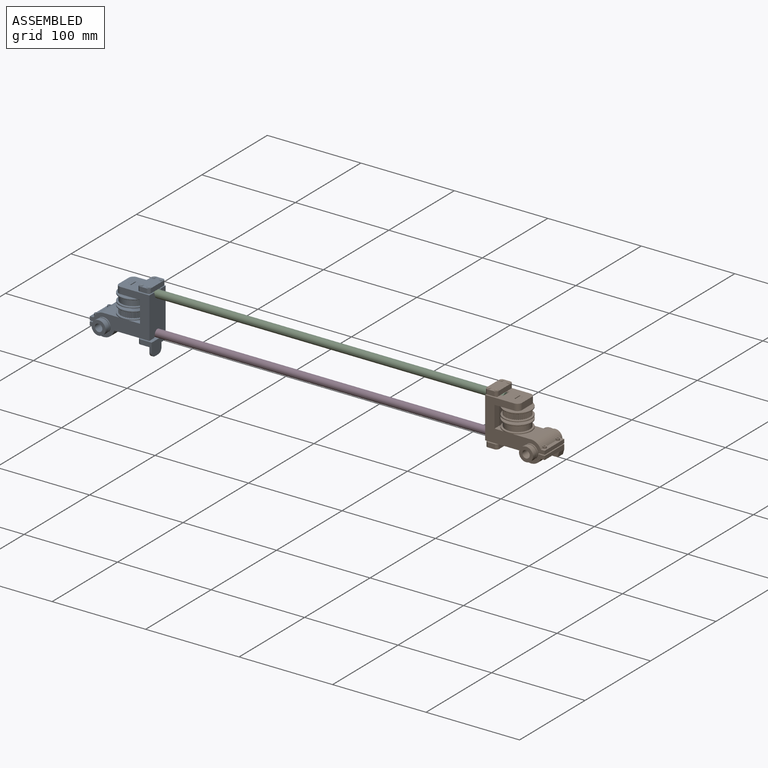
[diagram: assembled view]
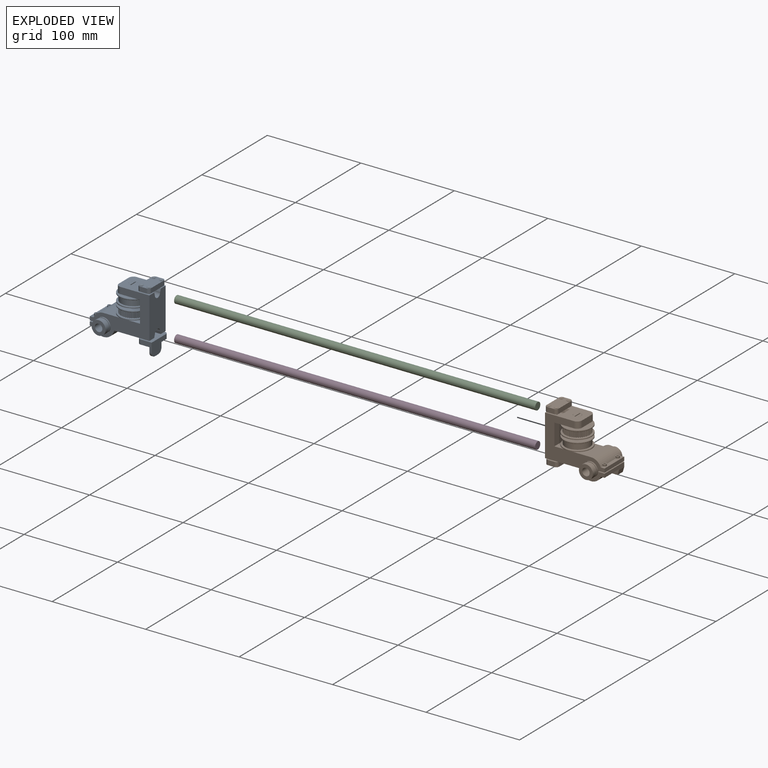
[diagram: exploded view]
GUIDED TOUR — MATED ASSEMBLY WITH SUBASSEMBLIES (Onshape document 680bb077483fe543d86ea1bb, AutoMate assembly 680bb077483fe543d86ea1bb_588a578d4577f737557ca1e0_59685756914b2273c871ae0a_default)

This assembly has 22 component occurrences arranged in 4 top-level units: 2 individual components plus 2 subassemblies (S0, S1). The tour has two levels: first the top level, where each subassembly is treated as one rigid unit; then each subassembly is toured internally in its own section (nesting deeper than one subassembly level is flattened into its subassembly's section).

Components are labeled P0..P21 across the whole record; subassembly units are labeled S0..S1. A mate is a constraint between two units; its type names the relative motion it leaves free:
  FASTENED — locks the two components together rigidly (no relative motion),
  SLIDER — leaves translation along the listed axis free.
Axis/direction vectors are unit vectors and 'through' points are millimeter coordinates, both in the assembly's world frame.

TOP-LEVEL MATES (between units; each subassembly's internal mates are listed in its own section)
  1. FASTENED "Fastened 2": P21 <-> S0, direction (-1.000, 0.000, 0.000) through (-25.36, 62.85, 22.77) mm
  2. SLIDER "Slider 1": S1 <-> P12, axis (-1.000, 0.000, 0.000) through (361.82, 62.85, 60.77) mm
  3. SLIDER "Slider 3": P12 <-> S0, axis (-1.000, 0.000, 0.000) through (-25.36, 62.85, 60.77) mm

TOP-LEVEL ASSEMBLY ORDER
  1. S0 — the base component [order heuristic]
  2. P12 [order heuristic]
  3. P21 [order heuristic]
  4. S1 [order heuristic]
Order-tag legend:
  [order heuristic] — this assembly is geometrically interlocked (no collision-free removal order exists), so components are listed in mate-graph order; insertion feasibility is not verified.

Of the 22 component occurrences, 4 carry the full construction recipe — the FeatureScript program that regenerates the part's solid from scratch; the rest are supplied as boundary geometry only. Each toured unit is shown spotlighted twice — assembled, then exploded with a leader line back to its socket (green = recipe-attached component, orange = geometry-only, blue = subassembly unit; the rest desaturated gray).
NOTE — this tour is split across 2 documents so each fits a 32k-token context. This is document 1: the component sections continue in the remaining 1 document, each repeating the header above.
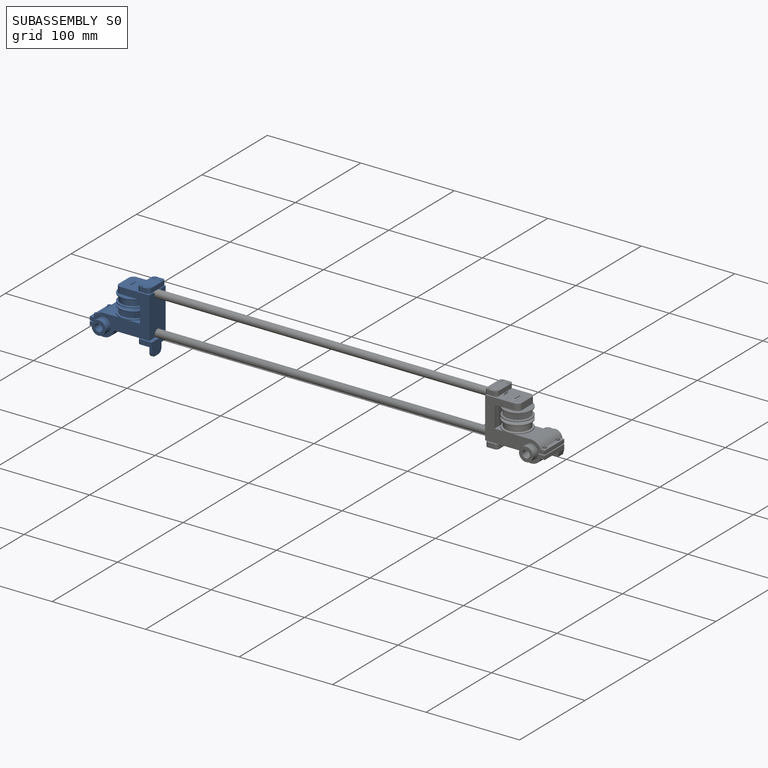
[diagram: subassembly S0 — assembled]
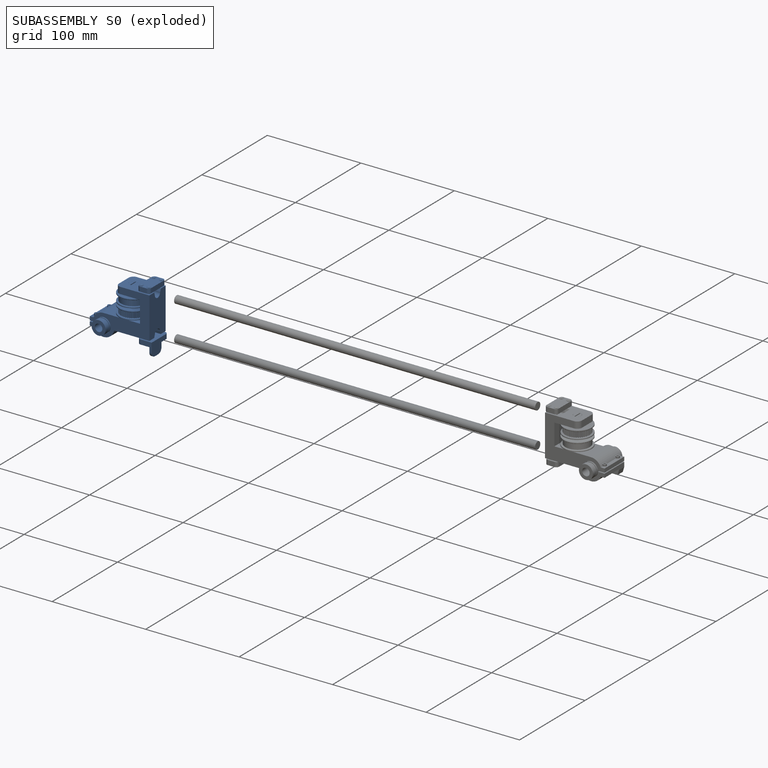
[diagram: subassembly S0 — exploded]
SUBASSEMBLY S0 — 10 components (P0, P6, P8, P9, P10, P14, P15, P16, P18, P19), of which 2 recipe-attached; toured below.
Held by: FASTENED mate "Fastened 2" to P21; SLIDER mate "Slider 3" to P12.
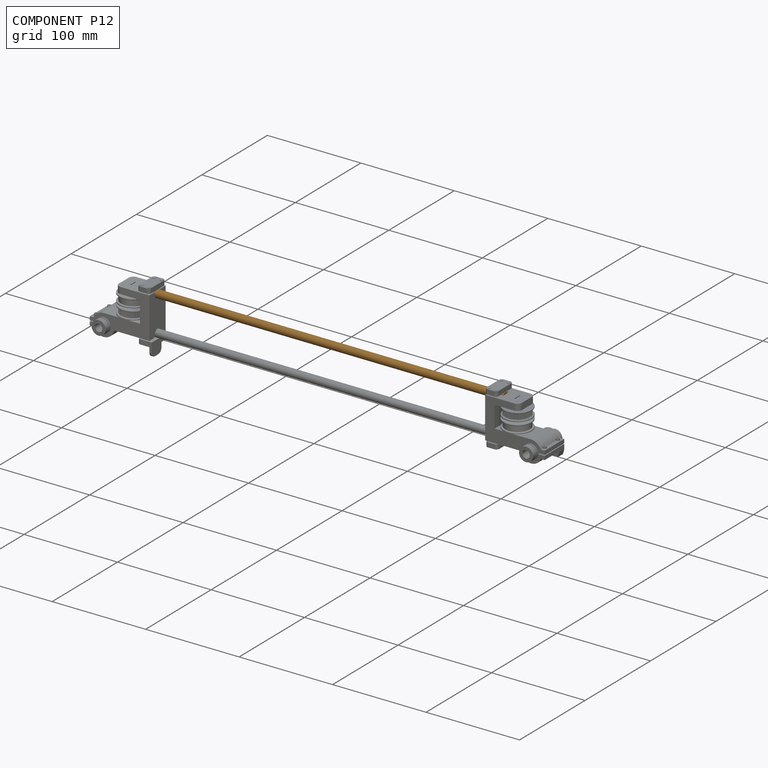
[diagram: component P12 — assembled]
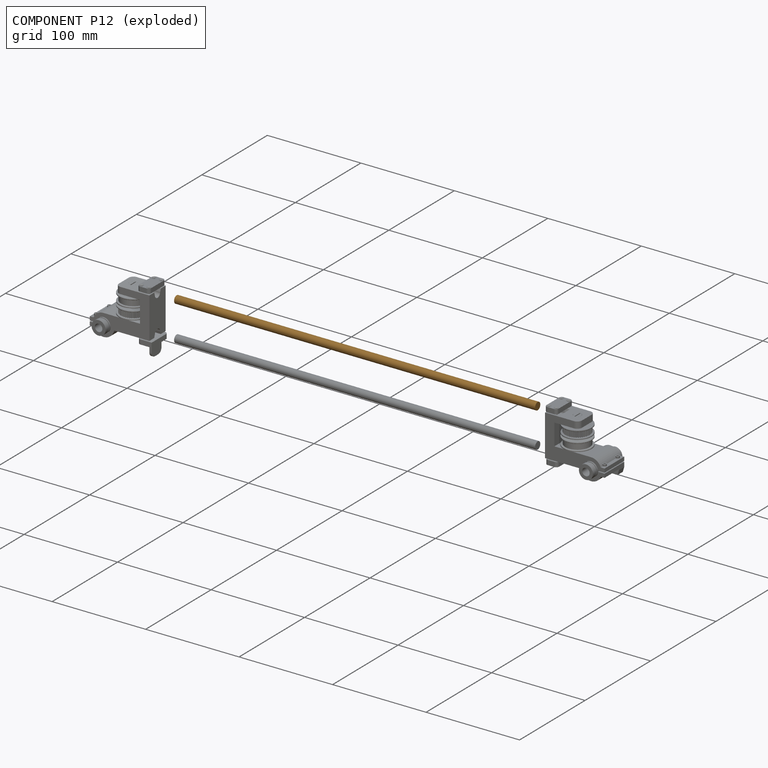
[diagram: component P12 — exploded]
COMPONENT P12 — geometry summary (no construction recipe available for this part):
  bounding box: 386.2 x 8.0 x 8.0 mm
  B-rep topology: 1 solid, 3 faces, 6 edges
  volume: 19411 mm^3 (79% of its bounding box)
  symmetry: revolution-symmetric about the x axis through its bounding-box center; 2-fold rotationally symmetric about the y axis; 2-fold rotationally symmetric about the z axis; mirror-symmetric across its x mid-plane, y mid-plane, z mid-plane
Held by: SLIDER mate "Slider 1" to P1; SLIDER mate "Slider 3" to P0.
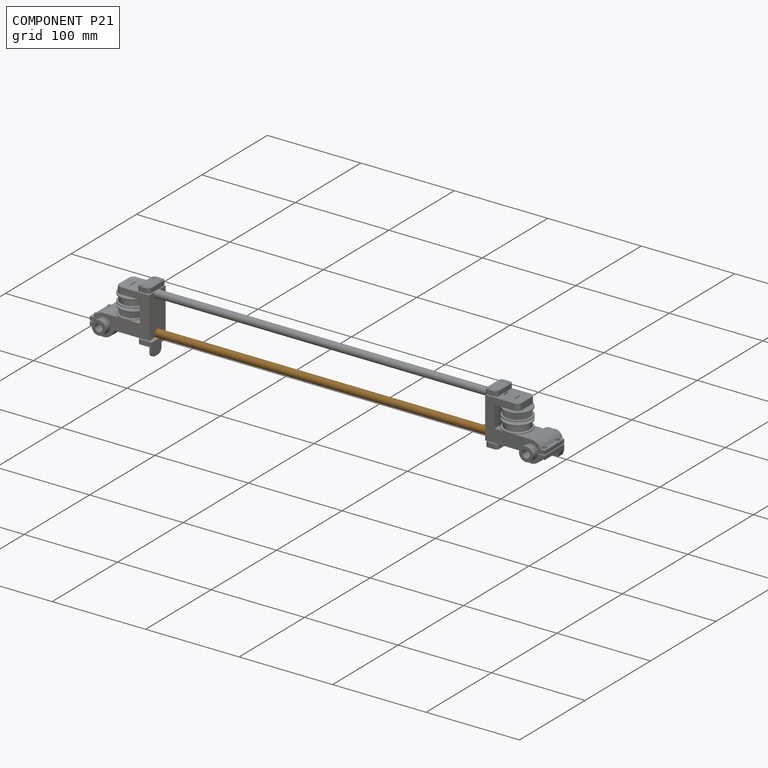
[diagram: component P21 — assembled]
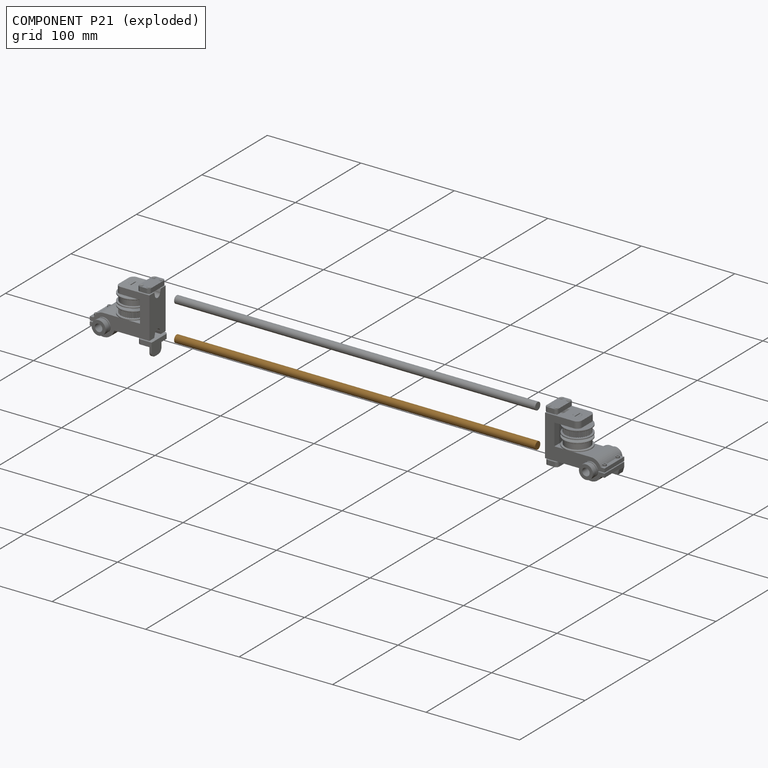
[diagram: component P21 — exploded]
COMPONENT P21 — geometry summary (no construction recipe available for this part):
  bounding box: 386.2 x 8.0 x 8.0 mm
  B-rep topology: 1 solid, 3 faces, 6 edges
  volume: 19411 mm^3 (79% of its bounding box)
  symmetry: revolution-symmetric about the x axis through its bounding-box center; 2-fold rotationally symmetric about the y axis; 2-fold rotationally symmetric about the z axis; mirror-symmetric across its x mid-plane, y mid-plane, z mid-plane
Held by: FASTENED mate "Fastened 2" to P0.
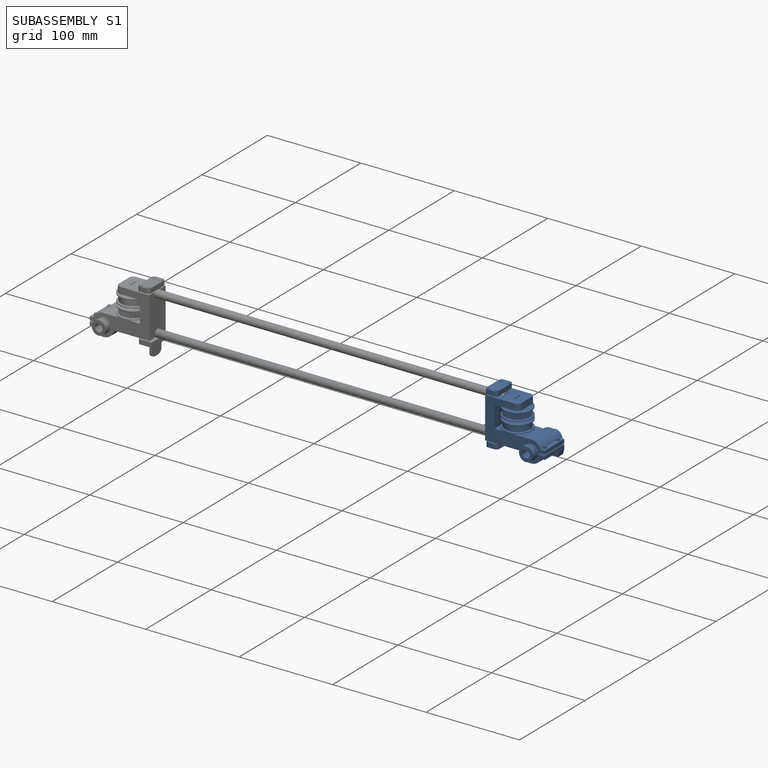
[diagram: subassembly S1 — assembled]
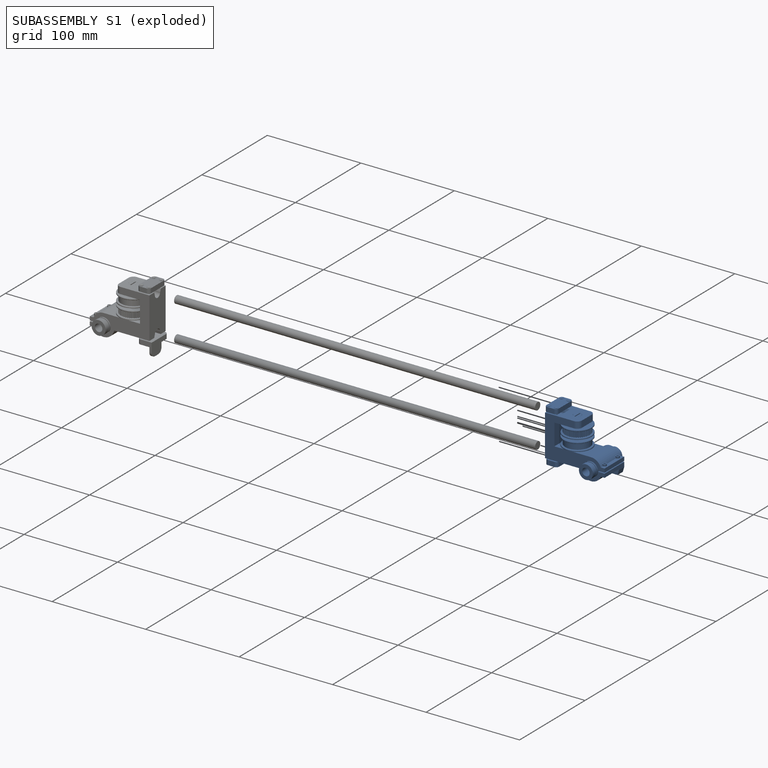
[diagram: subassembly S1 — exploded]
SUBASSEMBLY S1 — 10 components (P1, P2, P3, P4, P5, P7, P11, P13, P17, P20), of which 2 recipe-attached; toured below.
Held by: SLIDER mate "Slider 1" to P12.
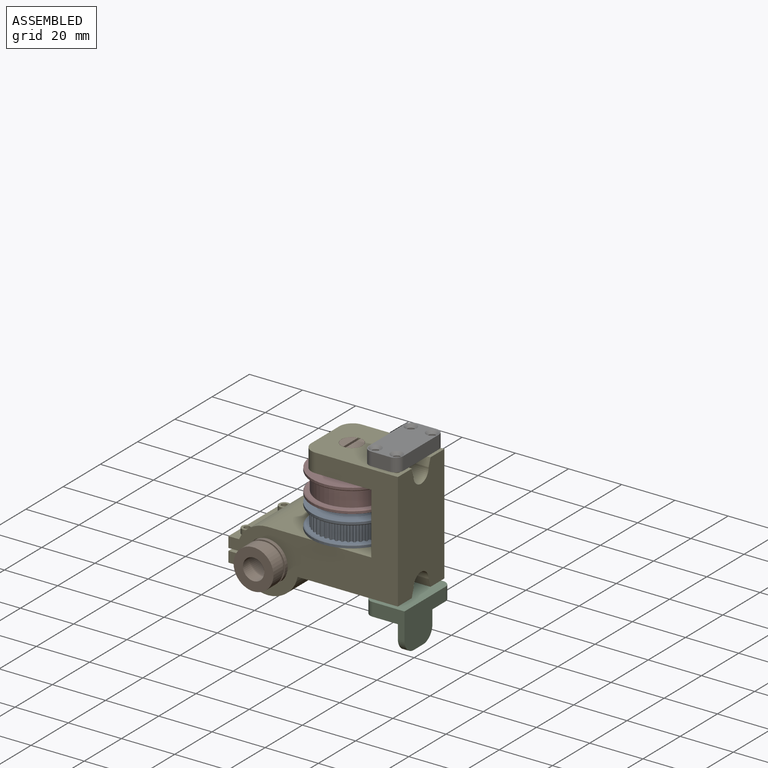
[diagram: subassembly S0 — assembled view]
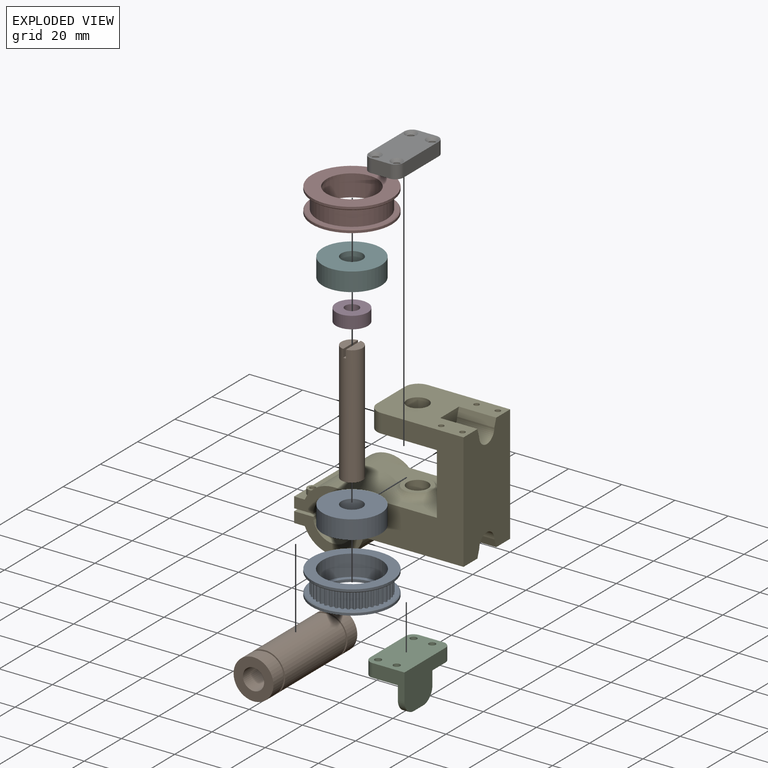
[diagram: subassembly S0 — exploded view]
SUBASSEMBLY S0 TOUR — 10 components, shown here in isolation at its own camera.

INTERNAL MATES
  1. FASTENED "Fastened 1": P10 <-> P19, direction (0.000, 1.000, 0.000) through (-60.36, 65.35, 22.17) mm
  2. FASTENED "Fastened 3": P16 <-> P14, direction (0.000, 0.000, -1.000) through (-37.36, 62.85, 54.37) mm
  3. FASTENED "Fastened 3": P6 <-> P10, direction (0.000, 0.000, 1.000) through (-37.36, 62.85, 63.77) mm
  4. FASTENED "Fastened 4": P15 <-> P10, direction (0.000, 0.000, -1.000) through (-21.86, 53.35, 64.77) mm
  5. FASTENED "Fastened 2": P9 <-> P18, direction (0.000, 0.000, -1.000) through (-37.36, 62.85, 42.77) mm
  6. FASTENED "Fastened 1": P0 <-> P18, direction (0.000, 0.000, 1.000) through (-37.36, 62.85, 35.77) mm
  7. FASTENED "Fastened 4": P14 <-> P9, direction (0.000, 0.000, -1.000) through (-37.36, 62.85, 47.37) mm
  8. FASTENED "Fastened 5": P8 <-> P10, direction (0.000, 0.000, 1.000) through (-13.86, 53.35, 18.77) mm
  9. FASTENED "Fastened 2": P18 <-> P10, direction (0.000, 0.000, -1.000) through (-37.36, 62.85, 35.77) mm
  10. FASTENED "Fastened 4": P14 <-> P9, direction (0.000, 0.000, -1.000) through (-37.36, 62.85, 47.37) mm
  11. FASTENED "Fastened 2": P9 <-> P18, direction (0.000, 0.000, -1.000) through (-37.36, 62.85, 42.77) mm
  12. FASTENED "Fastened 3": P16 <-> P14, direction (0.000, 0.000, -1.000) through (-37.36, 62.85, 54.37) mm
  13. FASTENED "Fastened 5": P8 <-> P10, direction (0.000, 0.000, 1.000) through (-13.86, 53.35, 18.77) mm
  14. FASTENED "Fastened 2": P18 <-> P10, direction (0.000, 0.000, -1.000) through (-37.36, 62.85, 35.77) mm
  15. FASTENED "Fastened 4": P15 <-> P10, direction (0.000, 0.000, -1.000) through (-21.86, 53.35, 64.77) mm
  16. FASTENED "Fastened 1": P0 <-> P18, direction (0.000, 0.000, 1.000) through (-37.36, 62.85, 35.77) mm
  17. FASTENED "Fastened 1": P10 <-> P19, direction (0.000, 1.000, 0.000) through (-60.36, 65.35, 22.17) mm
  18. FASTENED "Fastened 3": P6 <-> P10, direction (0.000, 0.000, 1.000) through (-37.36, 62.85, 63.77) mm

ASSEMBLY ORDER (within the subassembly)
  1. P18 — the base component [order heuristic]
  2. P0 — core [order heuristic]
  3. P6 [order verified]
  4. P10 [order verified]
  5. P9 [order verified]
  6. P14 — core [order heuristic]
  7. P16 — core [order heuristic]
  8. P19 [order verified]
  9. P8 [order verified]
  10. P15 [order verified]
Order-tag legend:
  [order verified] — this step's position reverses a verified removal order: the component was checked to insert without passing through the ones already placed.
  [order heuristic] — the first 4 components form the assembly's core: parts whose collision-free extraction could not be verified, listed in mate-graph order.
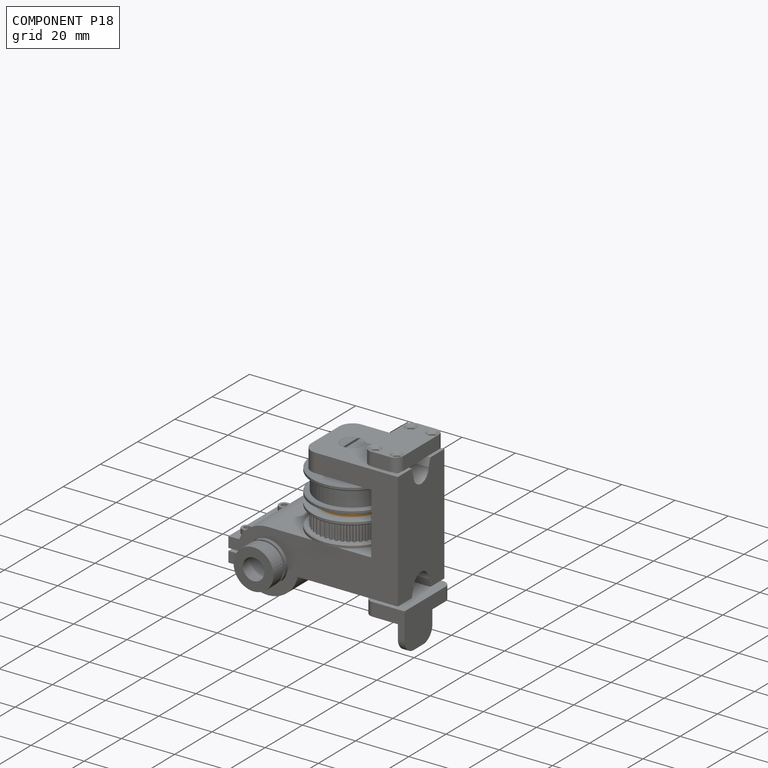
[diagram: component P18 — assembled]
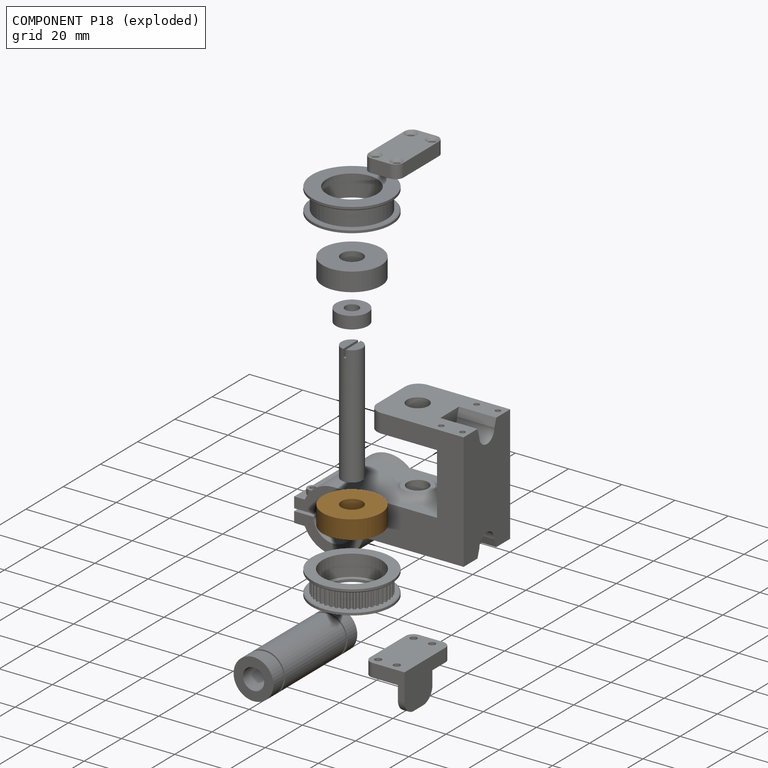
[diagram: component P18 — exploded]
COMPONENT P18 — geometry summary (no construction recipe available for this part):
  bounding box: 22.0 x 22.0 x 7.0 mm
  B-rep topology: 1 solid, 4 faces, 12 edges
  volume: 2309 mm^3 (68% of its bounding box)
  symmetry: 2-fold rotationally symmetric about the x axis; 2-fold rotationally symmetric about the y axis; revolution-symmetric about the z axis through its bounding-box center; mirror-symmetric across its x mid-plane, y mid-plane, z mid-plane
Held by: FASTENED mate "Fastened 2" to P9; FASTENED mate "Fastened 1" to P0; FASTENED mate "Fastened 2" to P10; FASTENED mate "Fastened 2" to P9; FASTENED mate "Fastened 2" to P10; FASTENED mate "Fastened 1" to P0.
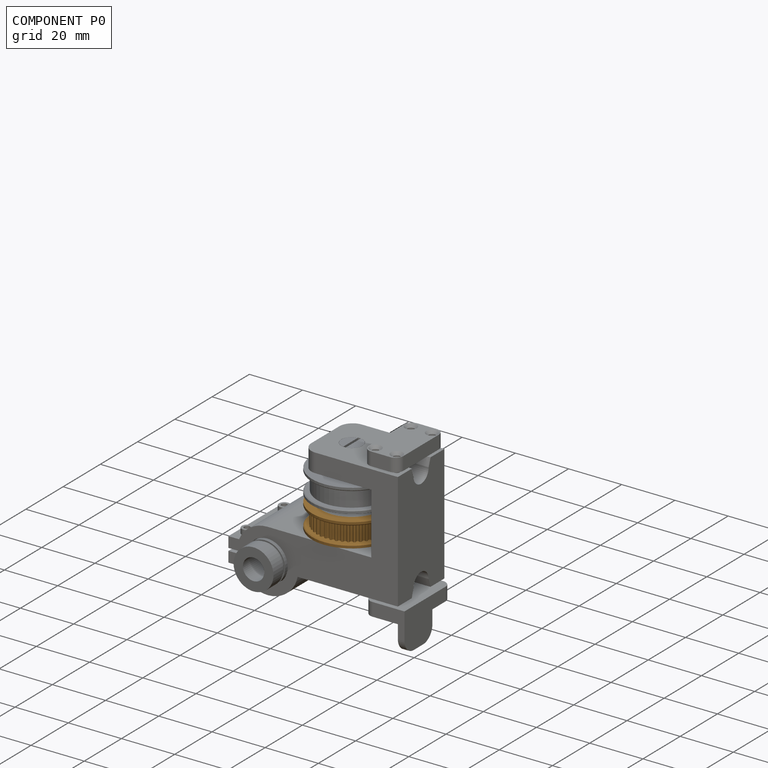
[diagram: component P0 — assembled]
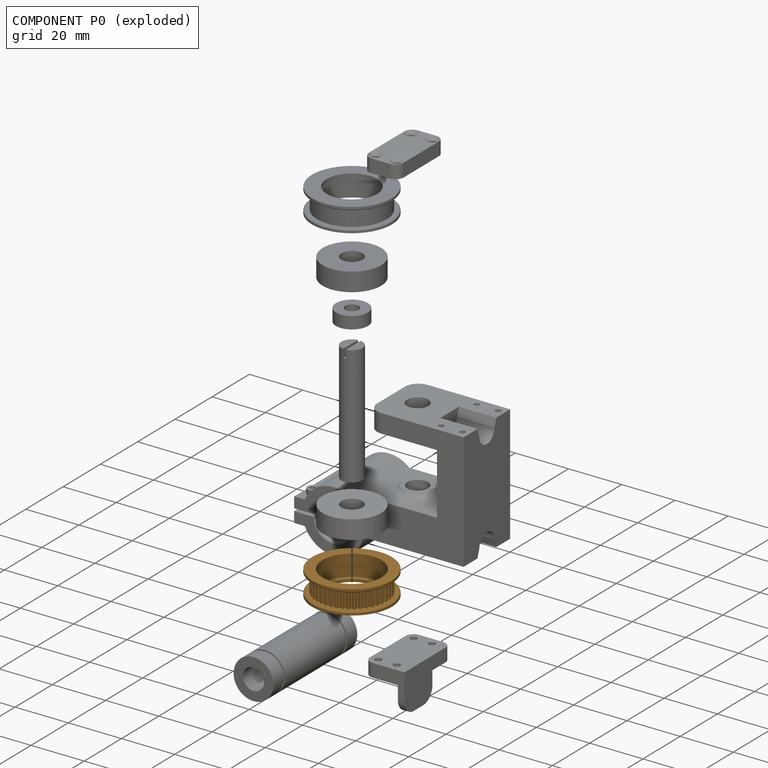
[diagram: component P0 — exploded]
COMPONENT P0 — geometry summary (no construction recipe available for this part):
  bounding box: 30.0 x 30.0 x 8.9 mm
  B-rep topology: 1 solid, 263 faces, 1546 edges
  volume: 1662 mm^3 (21% of its bounding box)
  symmetry: revolution-symmetric about the z axis through its bounding-box center; mirror-symmetric across its x mid-plane, y mid-plane
Held by: FASTENED mate "Fastened 1" to P18; FASTENED mate "Fastened 1" to P18.
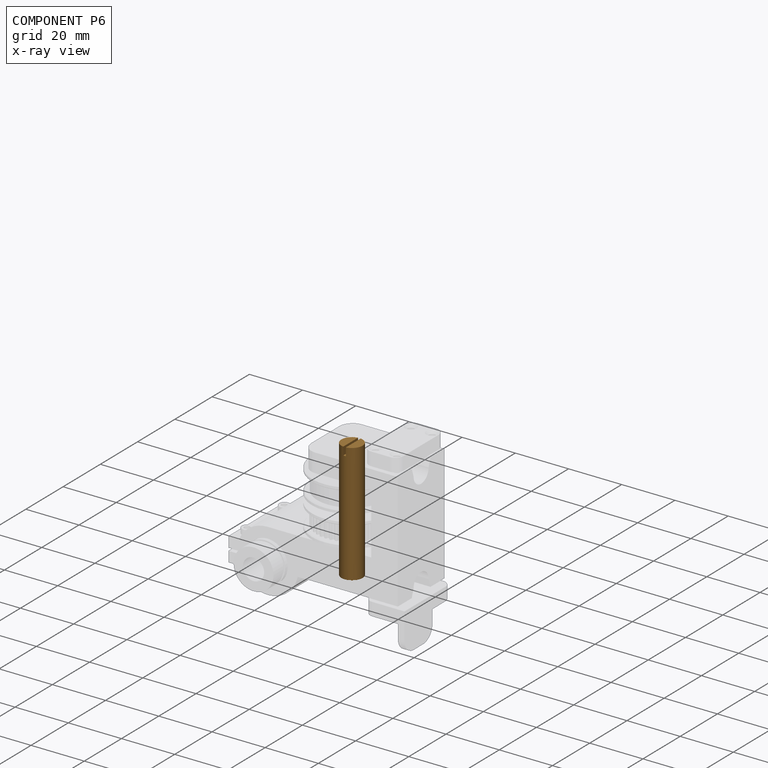
[diagram: component P6 — x-ray view]
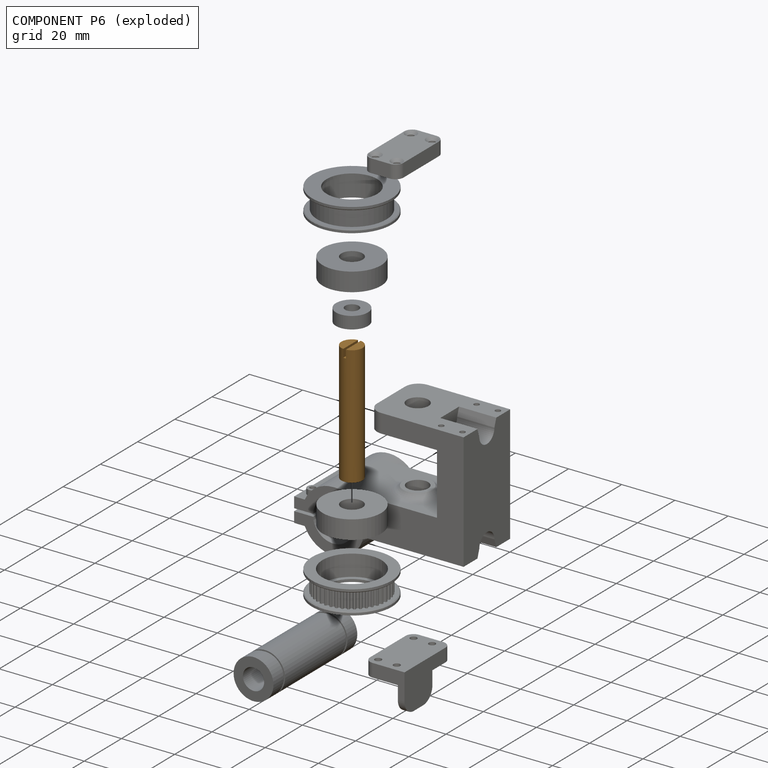
[diagram: component P6 — exploded]
COMPONENT P6 — geometry summary (no construction recipe available for this part):
  bounding box: 45.0 x 8.0 x 8.0 mm
  B-rep topology: 1 solid, 7 faces, 30 edges
  volume: 2238 mm^3 (78% of its bounding box)
  symmetry: 2-fold rotationally symmetric about the z axis; mirror-symmetric across its x mid-plane, y mid-plane
Held by: FASTENED mate "Fastened 3" to P10; FASTENED mate "Fastened 3" to P10.
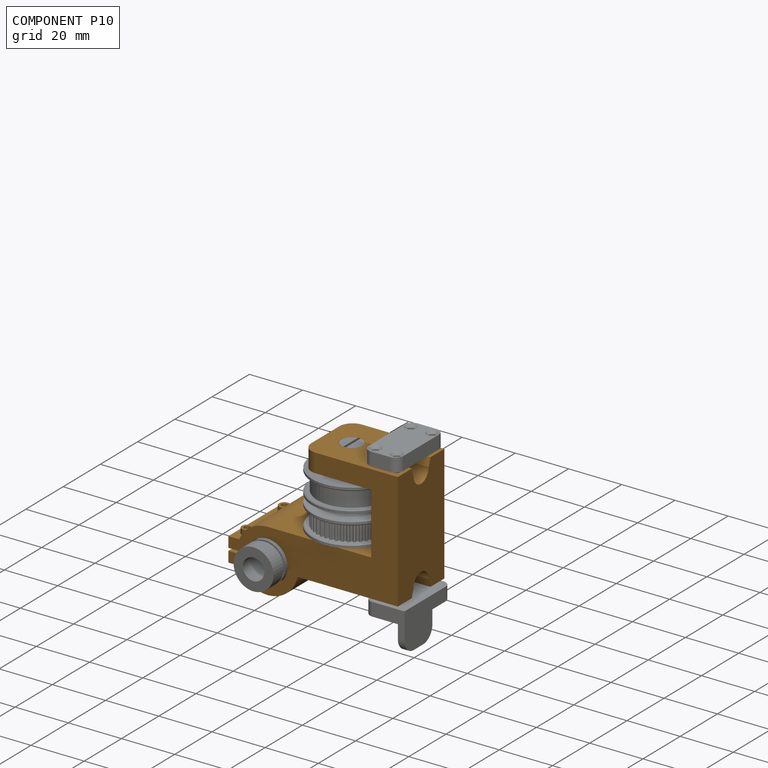
[diagram: component P10 — assembled]
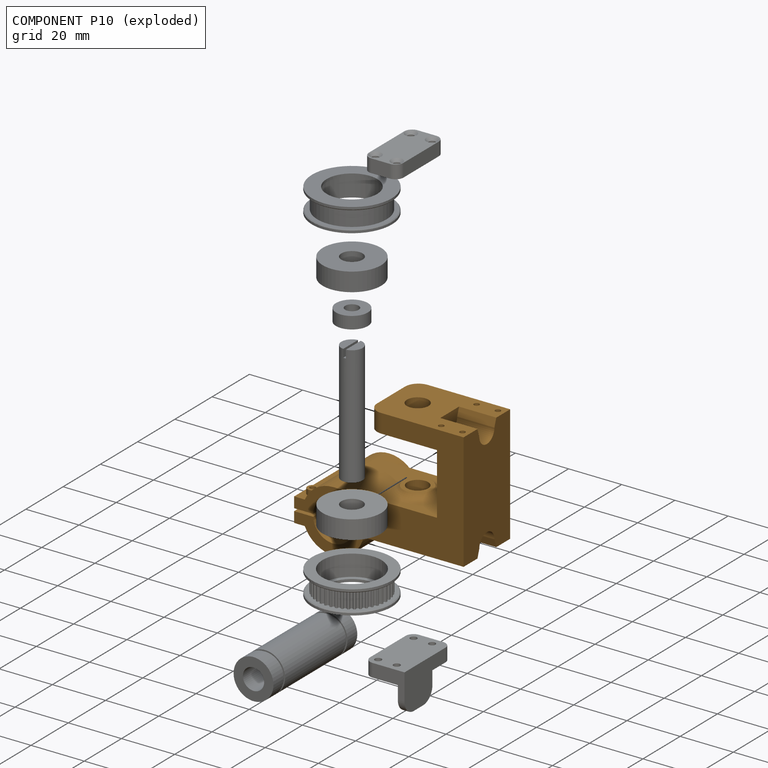
[diagram: component P10 — exploded]
COMPONENT P10 — geometry summary (no construction recipe available for this part):
  bounding box: 63.7 x 53.2 x 31.6 mm
  B-rep topology: 1 solid, 64 faces, 332 edges
  volume: 31379 mm^3 (29% of its bounding box)
Held by: FASTENED mate "Fastened 1" to P19; FASTENED mate "Fastened 3" to P6; FASTENED mate "Fastened 4" to P15; FASTENED mate "Fastened 5" to P8; FASTENED mate "Fastened 2" to P18; FASTENED mate "Fastened 5" to P8; FASTENED mate "Fastened 2" to P18; FASTENED mate "Fastened 4" to P15; FASTENED mate "Fastened 1" to P19; FASTENED mate "Fastened 3" to P6.
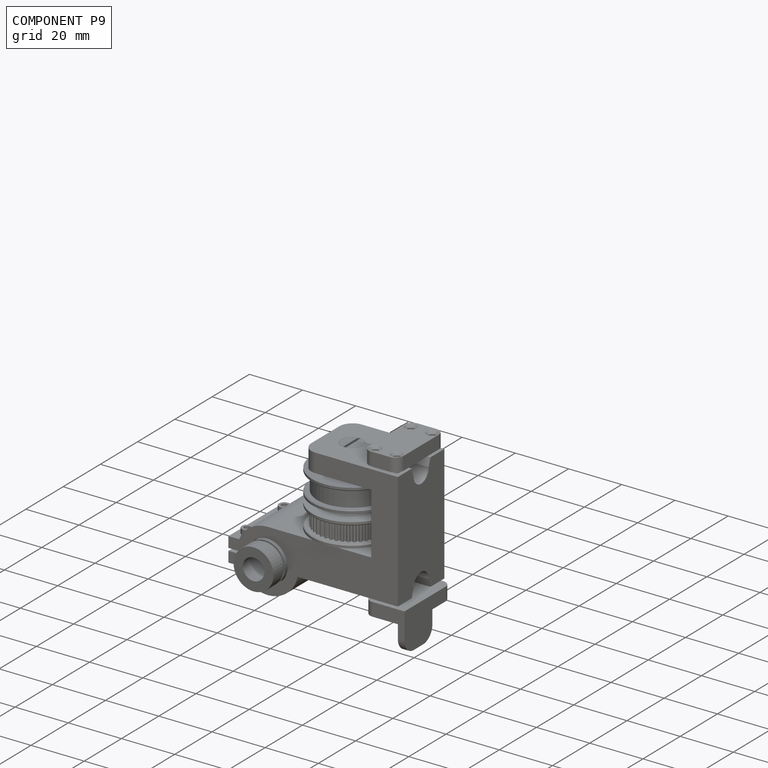
[diagram: component P9 — assembled]
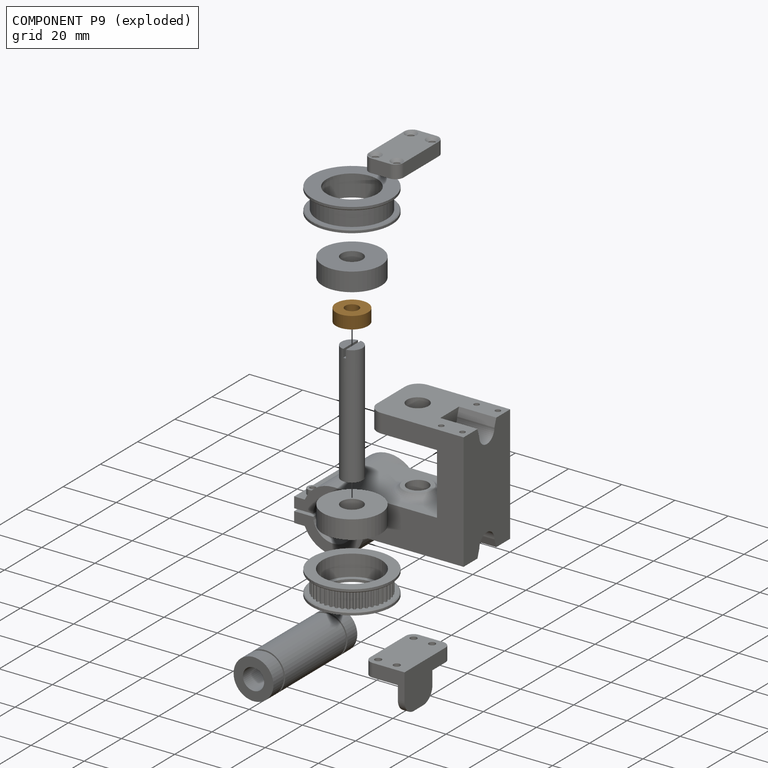
[diagram: component P9 — exploded]
COMPONENT P9 — geometry summary (no construction recipe available for this part):
  bounding box: 12.0 x 12.0 x 4.6 mm
  B-rep topology: 1 solid, 4 faces, 12 edges
  volume: 426 mm^3 (64% of its bounding box)
  symmetry: 2-fold rotationally symmetric about the x axis; 2-fold rotationally symmetric about the y axis; revolution-symmetric about the z axis through its bounding-box center; mirror-symmetric across its x mid-plane, y mid-plane, z mid-plane
Held by: FASTENED mate "Fastened 2" to P18; FASTENED mate "Fastened 4" to P14; FASTENED mate "Fastened 4" to P14; FASTENED mate "Fastened 2" to P18.
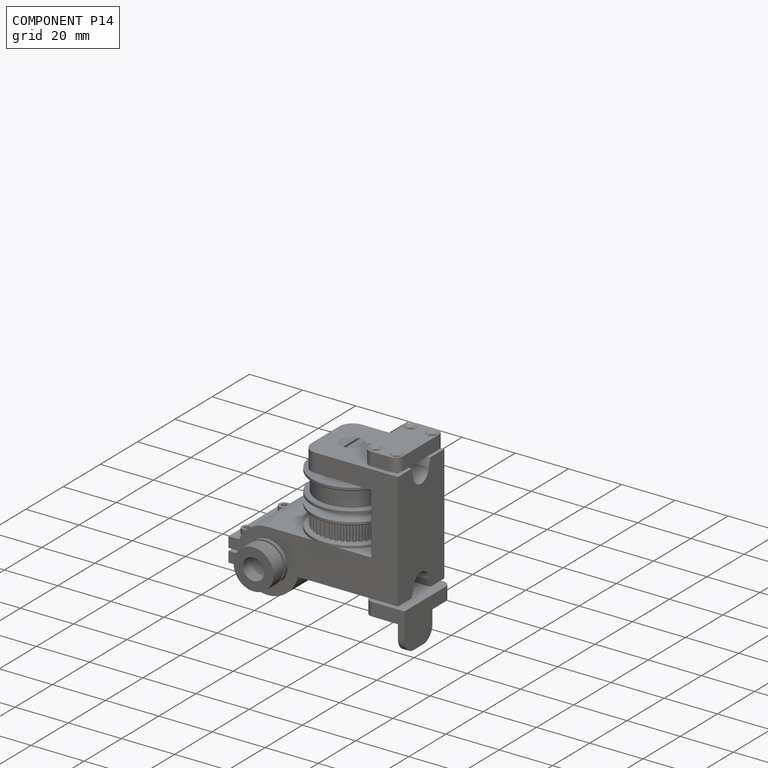
[diagram: component P14 — assembled]
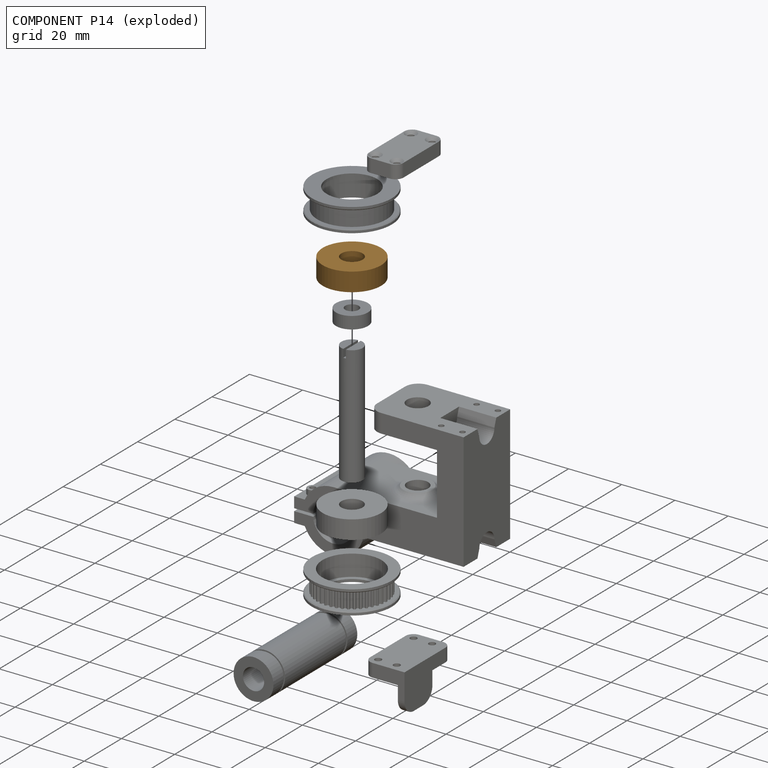
[diagram: component P14 — exploded]
COMPONENT P14 — geometry summary (no construction recipe available for this part):
  bounding box: 22.0 x 22.0 x 7.0 mm
  B-rep topology: 1 solid, 4 faces, 12 edges
  volume: 2309 mm^3 (68% of its bounding box)
  symmetry: 2-fold rotationally symmetric about the x axis; 2-fold rotationally symmetric about the y axis; revolution-symmetric about the z axis through its bounding-box center; mirror-symmetric across its x mid-plane, y mid-plane, z mid-plane
Held by: FASTENED mate "Fastened 3" to P16; FASTENED mate "Fastened 4" to P9; FASTENED mate "Fastened 4" to P9; FASTENED mate "Fastened 3" to P16.
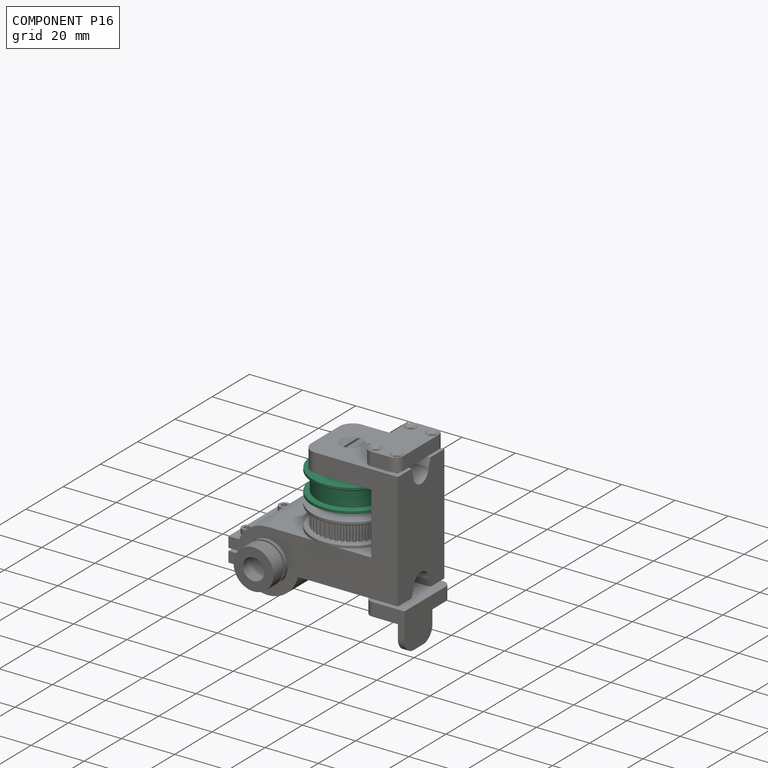
[diagram: component P16 — assembled]
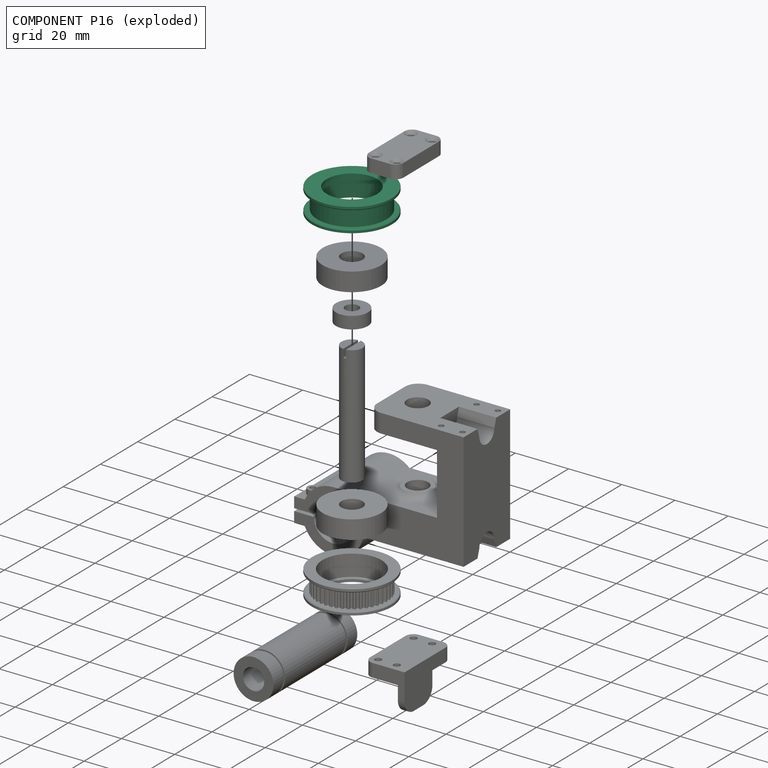
[diagram: component P16 — exploded]
COMPONENT P16 — recipe-attached (CADFS 00626625, mesh-verified: the recipe's output STEP matches this component's geometry to below the mesh-comparison resolution (tessellation chordal tolerance ~0.065 mm)).
Held by: FASTENED mate "Fastened 3" to P14; FASTENED mate "Fastened 3" to P14.
Construction recipe (FeatureScript — the CAD program that rebuilds this solid; sketch coordinates are in the units given by the * unit suffixes, e.g. mm):

FeatureScript 1732;
import(path : "onshape/std/geometry.fs", version : "1732.0");
import(path : "onshape/std/common.fs", version : "1732.0");
const mm = millimeter;
const VERTEX = EntityType.VERTEX;
const EDGE = EntityType.EDGE;
const FACE = EntityType.FACE;
const BODY = EntityType.BODY;
function v(x, y){return vector(x, y);}
function OD(order){return orderDisambiguation(order);}
function OSD(set){return originalSetDisambiguation(set);}
function TD(topology){return topologyDisambiguation(topology);}
function TDD(query){return trueDependencyDisambiguation(query);}
function sQuery(a, b, c) {return sketchEntityQuery(a, b, c);}

annotation { "Feature Type Name" : "Feature", "Feature Type Description" : "" }
export const myFeature = defineFeature(function(context is Context, id is Id, definition is map)
    precondition{}
    {
        {
            var Q0;
            Q0=qCreatedBy(makeId("Front.planeOp"),FACE);
            var sketch = newSketch(context, id + "F0", { "sketchPlane" : qUnion([Q0])});
            skLineSegment(sketch, "E0", {"start": v(0, 4.45) * mm, "end": v(15, 4.45) * mm});
            skLineSegment(sketch, "E1", {"start": v(15, 4.45) * mm, "end": v(15, 3.25) * mm});
            skLineSegment(sketch, "E2", {"start": v(15, 3.25) * mm, "end": v(13, 3.25) * mm});
            skLineSegment(sketch, "E3", {"start": v(13, 3.25) * mm, "end": v(13, -3.25) * mm});
            skLineSegment(sketch, "E4", {"start": v(13, -3.25) * mm, "end": v(15, -3.25) * mm});
            skLineSegment(sketch, "E5", {"start": v(15, -3.25) * mm, "end": v(15, -4.45) * mm});
            skLineSegment(sketch, "E6", {"start": v(15, -4.45) * mm, "end": v(0, -4.45) * mm});
            skPoint(sketch, "E7", {"position": v(0, 0) * mm});
            skLineSegment(sketch, "E8", {"start": v(0, 4.45) * mm, "end": v(0, -4.45) * mm});
            skSolve(sketch);
        }
        {
            var Q0;
            Q0=makeQuery(id+"F0.imprint","IMPRINT",FACE,{"disambiguationData":[TD([[makeQuery(id+"F0.imprint","IMPRINT",EDGE,{"derivedFrom":sQuery(id+"F0.wireOp",EDGE,"E0")}),-1.0]])]});
            var Q1;
            Q1=sQuery(id+"F0.wireOp",EDGE,"E0");
            var Q2;
            Q2=sQuery(id+"F0.wireOp",EDGE,"E1");
            var Q3;
            Q3=sQuery(id+"F0.wireOp",EDGE,"E6");
            var Q4;
            Q4=sQuery(id+"F0.wireOp",EDGE,"E2");
            var Q5;
            Q5=sQuery(id+"F0.wireOp",EDGE,"E4");
            var Q6;
            Q6=sQuery(id+"F0.wireOp",EDGE,"E5");
            var Q7;
            Q7=sQuery(id+"F0.wireOp",EDGE,"E3");
            var Q8;
            Q8=sQuery(id+"F0.wireOp",EDGE,"E8");
            revolve(context, id + "F1", {"entities" : qUnion([Q0]), "surfaceEntities" : qUnion([Q1, Q2, Q3, Q4, Q5, Q6, Q7]), "axis" : qUnion([Q8]), "revolveType" : RevolveType.FULL});
        }
        {
            var Q0;
            Q0=makeQuery(id+"F1.opRevolve","SWEPT_FACE",FACE,{"disambiguationData":[OSD([sQuery(id+"F0.wireOp",EDGE,"E0")])]});
            var sketch = newSketch(context, id + "F2", { "sketchPlane" : qUnion([Q0])});
            skCircle(sketch, "E9", {"center": v(0, 0) * mm, "radius": 9.5 * mm});
            skCircle(sketch, "E10", {"center": v(0, 0) * mm, "radius": 11.1 * mm});
            skSolve(sketch);
        }
        {
            var Q0;
            Q0=makeQuery(id+"F2.imprint","IMPRINT",FACE,{"disambiguationData":[TD([[makeQuery(id+"F2.imprint","IMPRINT",EDGE,{"derivedFrom":sQuery(id+"F2.wireOp",EDGE,"E9")}),1.0]])]});
            extrude(context, id + "F3", {"entities" : qUnion([Q0]), "operationType" : NewBodyOperationType.REMOVE, "endBound" : BoundingType.UP_TO_NEXT, "oppositeDirection" : true, "depth" : 25 * mm});
        }
        {
            var Q0;
            Q0=makeQuery(id+"F2.imprint","IMPRINT",FACE,{"disambiguationData":[TD([[makeQuery(id+"F2.imprint","IMPRINT",EDGE,{"derivedFrom":sQuery(id+"F2.wireOp",EDGE,"E9")}),-1.0]])]});
            extrude(context, id + "F4", {"entities" : qUnion([Q0]), "operationType" : NewBodyOperationType.REMOVE, "oppositeDirection" : true, "depth" : 7.9 * mm});
        }
        {
            var Q0;
            Q0=makeQuery(id+"F1.opRevolve","SWEPT_EDGE",EDGE,{"disambiguationData":[OSD([sQuery(id+"F0.wireOp",EDGE,"E4"),sQuery(id+"F0.wireOp",EDGE,"E5")])]});
            var Q1;
            Q1=makeQuery(id+"F1.opRevolve","SWEPT_EDGE",EDGE,{"disambiguationData":[OSD([sQuery(id+"F0.wireOp",EDGE,"E1"),sQuery(id+"F0.wireOp",EDGE,"E2")])]});
            chamfer(context, id + "F5", {"entities" : qUnion([Q0, Q1]), "width" : .3 * mm, "tangentPropagation" : true});
        }
    });
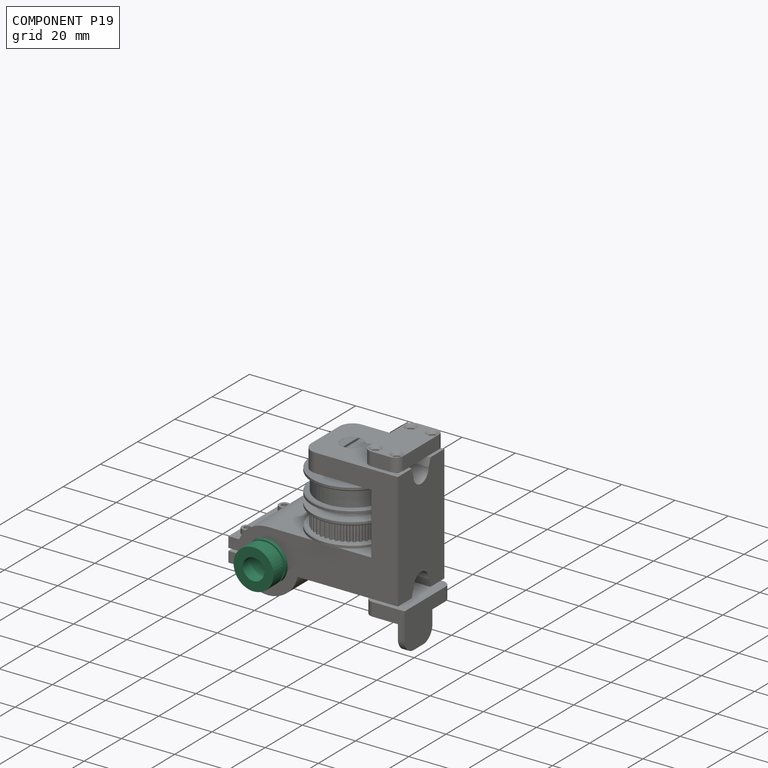
[diagram: component P19 — assembled]
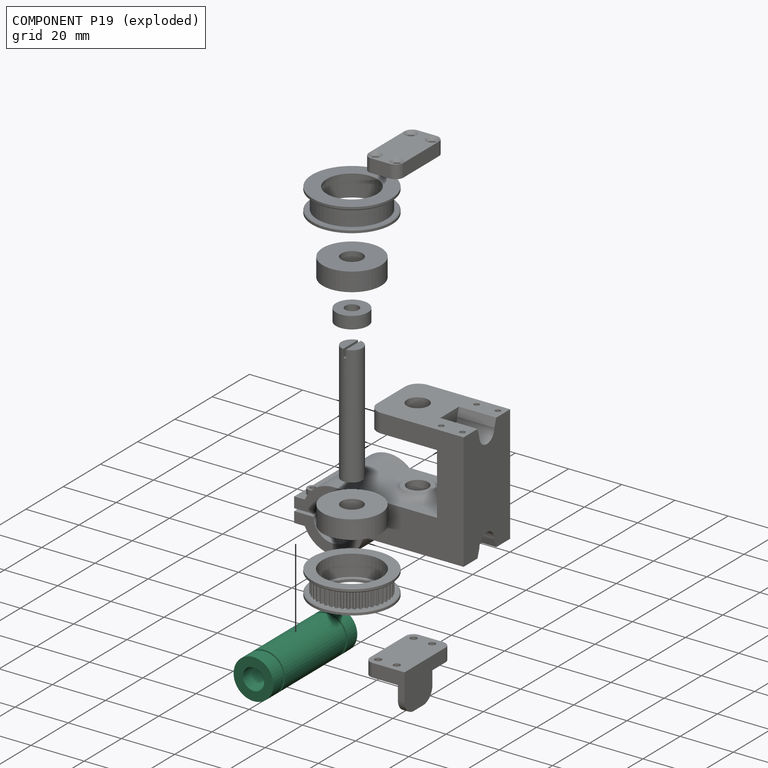
[diagram: component P19 — exploded]
COMPONENT P19 — recipe-attached (CADFS 00242464, mesh-verified: the recipe's output STEP matches this component's geometry to below the mesh-comparison resolution (tessellation chordal tolerance ~0.0746 mm)).
Held by: FASTENED mate "Fastened 1" to P10; FASTENED mate "Fastened 1" to P10.
Construction recipe (FeatureScript — the CAD program that rebuilds this solid; sketch coordinates are in the units given by the * unit suffixes, e.g. mm):

FeatureScript 2522;
import(path : "onshape/std/geometry.fs", version : "2522.0");
import(path : "onshape/std/common.fs", version : "2522.0");
const mm = millimeter;
const VERTEX = EntityType.VERTEX;
const EDGE = EntityType.EDGE;
const FACE = EntityType.FACE;
const BODY = EntityType.BODY;
function v(x, y){return vector(x, y);}
function OD(order){return orderDisambiguation(order);}
function OSD(set){return originalSetDisambiguation(set);}
function TD(topology){return topologyDisambiguation(topology);}
function TDD(query){return trueDependencyDisambiguation(query);}
function sQuery(a, b, c) {return sketchEntityQuery(a, b, c);}

annotation { "Feature Type Name" : "Feature", "Feature Type Description" : "" }
export const myFeature = defineFeature(function(context is Context, id is Id, definition is map)
    precondition{}
    {
        {
            var Q0;
            Q0=qCreatedBy(makeId("Front.planeOp"),FACE);
            var sketch = newSketch(context, id + "F0", { "sketchPlane" : qUnion([Q0])});
            skCircle(sketch, "E0", {"center": v(0, 0) * mm, "radius": 7.5 * mm});
            skCircle(sketch, "E1", {"center": v(0, 0) * mm, "radius": 4 * mm});
            skSolve(sketch);
        }
        {
            var Q0;
            Q0=qSketchRegion(id+"F0",true);
            extrude(context, id + "F1", {"entities" : qUnion([Q0]), "depth" : 5.25 * mm});
        }
        {
            var Q0;
            Q0=makeQuery(id+"F1.opExtrude","CAP_FACE",FACE,{"disambiguationData":[OSD([sQuery(id+"F0.wireOp",EDGE,"E0"),sQuery(id+"F0.wireOp",EDGE,"E1")])],"isStart":false});
            var sketch = newSketch(context, id + "F2", { "sketchPlane" : qUnion([Q0])});
            skCircle(sketch, "E2", {"center": v(0, 0) * mm, "radius": 7 * mm});
            skSolve(sketch);
        }
        {
            var Q0;
            Q0=makeQuery(id+"F2.imprint","IMPRINT",FACE,{"disambiguationData":[TD([[makeQuery(id+"F2.imprint","IMPRINT",EDGE,{"derivedFrom":sQuery(id+"F2.wireOp",EDGE,"E2")}),1.0]])]});
            extrude(context, id + "F3", {"entities" : qUnion([Q0]), "operationType" : NewBodyOperationType.ADD, "depth" : 1 * mm});
        }
        {
            var Q0;
            Q0=makeQuery(id+"F3.opExtrude","CAP_FACE",FACE,{"disambiguationData":[OSD([sQuery(id+"F0.wireOp",EDGE,"E1"),sQuery(id+"F2.wireOp",EDGE,"E2")])],"isStart":false});
            var sketch = newSketch(context, id + "F4", { "sketchPlane" : qUnion([Q0])});
            skCircle(sketch, "E3.0", {"center": v(0, 0) * mm, "radius": 7.5 * mm});
            skSolve(sketch);
        }
        {
            var Q0;
            Q0=makeQuery(id+"F4.imprint","IMPRINT",FACE,{"disambiguationData":[TD([[makeQuery(id+"F4.imprint","IMPRINT",EDGE,{"derivedFrom":makeQuery(id+"F3.opExtrude","CAP_EDGE",EDGE,{"disambiguationData":[OSD([sQuery(id+"F2.wireOp",EDGE,"E2")])],"isStart":false})}),1.0]])]});
            var Q1;
            Q1=makeQuery(id+"F4.imprint","IMPRINT",FACE,{"disambiguationData":[TD([[makeQuery(id+"F4.imprint","IMPRINT",EDGE,{"derivedFrom":sQuery(id+"F4.wireOp",EDGE,"E3.0")}),1.0]])]});
            extrude(context, id + "F5", {"entities" : qUnion([Q0, Q1]), "operationType" : NewBodyOperationType.ADD, "depth" : 32.5 * mm});
        }
        {
            var Q0;
            Q0=makeQuery(id+"F5.opExtrude","CAP_FACE",FACE,{"disambiguationData":[OSD([sQuery(id+"F0.wireOp",EDGE,"E1"),sQuery(id+"F4.wireOp",EDGE,"E3.0")])],"isStart":false});
            var sketch = newSketch(context, id + "F6", { "sketchPlane" : qUnion([Q0])});
            skCircle(sketch, "E4.0", {"center": v(0, 0) * mm, "radius": 7 * mm});
            skSolve(sketch);
        }
        {
            var Q0;
            Q0=makeQuery(id+"F6.imprint","IMPRINT",FACE,{"disambiguationData":[TD([[makeQuery(id+"F6.imprint","IMPRINT",EDGE,{"derivedFrom":sQuery(id+"F6.wireOp",EDGE,"E4.0")}),1.0]])]});
            extrude(context, id + "F7", {"entities" : qUnion([Q0]), "operationType" : NewBodyOperationType.ADD, "depth" : 1 * mm});
        }
        {
            var Q0;
            Q0=makeQuery(id+"F7.opExtrude","CAP_FACE",FACE,{"disambiguationData":[OSD([sQuery(id+"F0.wireOp",EDGE,"E1"),sQuery(id+"F6.wireOp",EDGE,"E4.0")])],"isStart":false});
            var sketch = newSketch(context, id + "F8", { "sketchPlane" : qUnion([Q0])});
            skCircle(sketch, "E5.0", {"center": v(0, 0) * mm, "radius": 7.5 * mm});
            skSolve(sketch);
        }
        {
            var Q0;
            Q0=makeQuery(id+"F8.imprint","IMPRINT",FACE,{"disambiguationData":[TD([[makeQuery(id+"F8.imprint","IMPRINT",EDGE,{"derivedFrom":sQuery(id+"F8.wireOp",EDGE,"E5.0")}),1.0]])]});
            var Q1;
            Q1=makeQuery(id+"F8.imprint","IMPRINT",FACE,{"disambiguationData":[TD([[makeQuery(id+"F8.imprint","IMPRINT",EDGE,{"derivedFrom":makeQuery(id+"F7.opExtrude","CAP_EDGE",EDGE,{"disambiguationData":[OSD([sQuery(id+"F6.wireOp",EDGE,"E4.0")])],"isStart":false})}),1.0]])]});
            extrude(context, id + "F9", {"entities" : qUnion([Q0, Q1]), "operationType" : NewBodyOperationType.ADD, "depth" : 5.25 * mm});
        }
    });
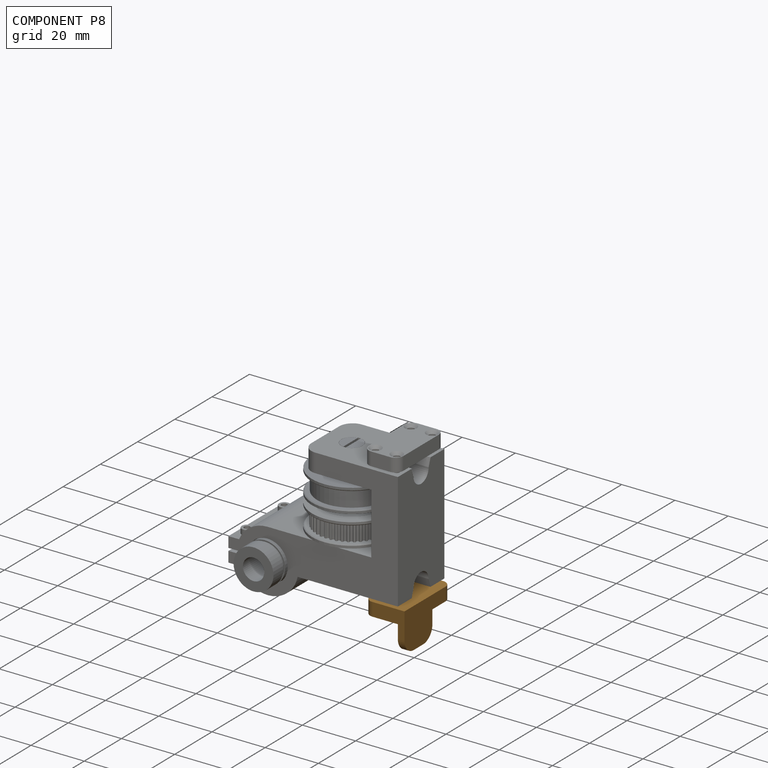
[diagram: component P8 — assembled]
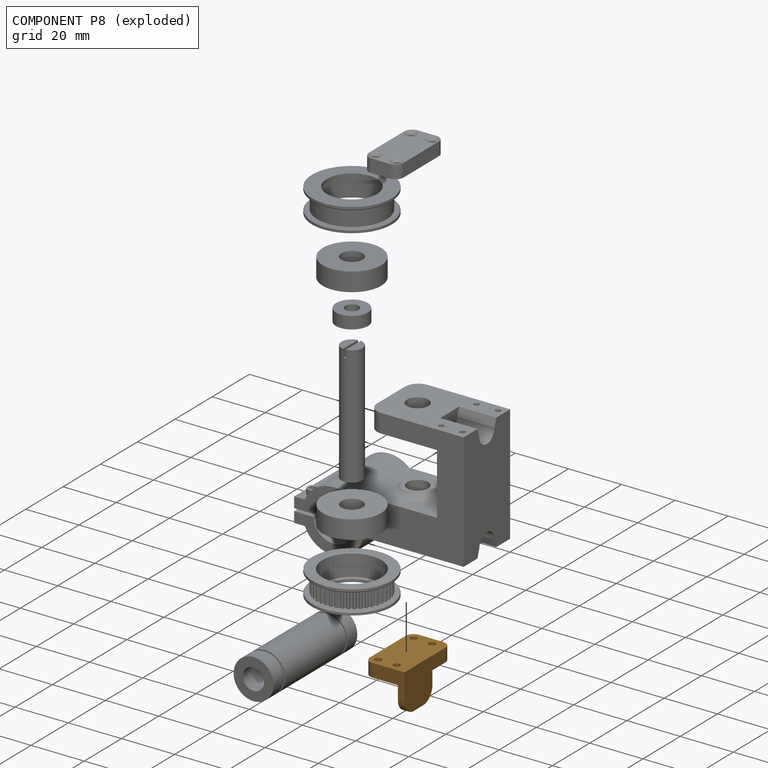
[diagram: component P8 — exploded]
COMPONENT P8 — geometry summary (no construction recipe available for this part):
  bounding box: 25.0 x 15.0 x 15.0 mm
  B-rep topology: 1 solid, 22 faces, 112 edges
  volume: 2076 mm^3 (37% of its bounding box)
Held by: FASTENED mate "Fastened 5" to P10; FASTENED mate "Fastened 5" to P10.
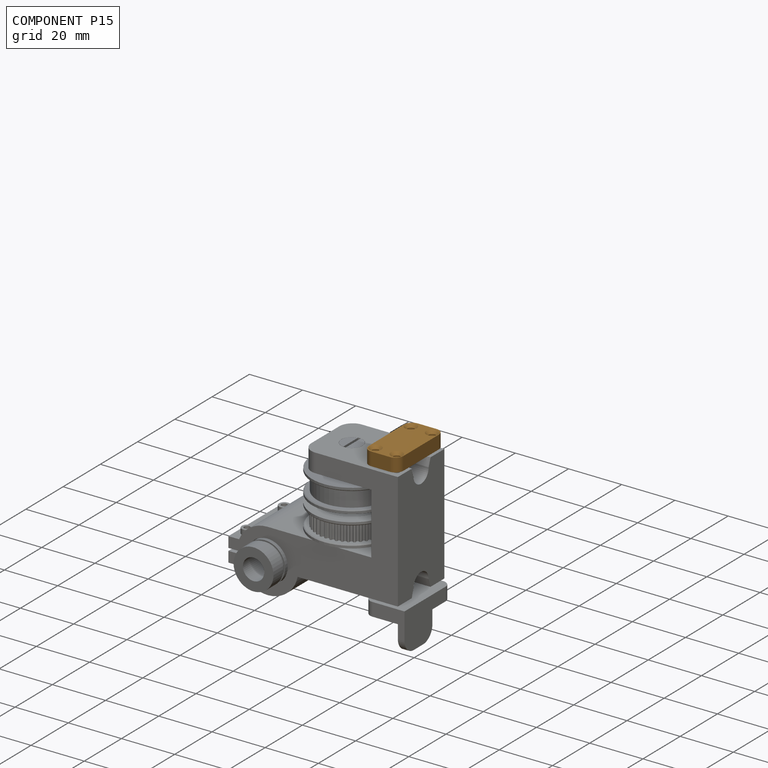
[diagram: component P15 — assembled]
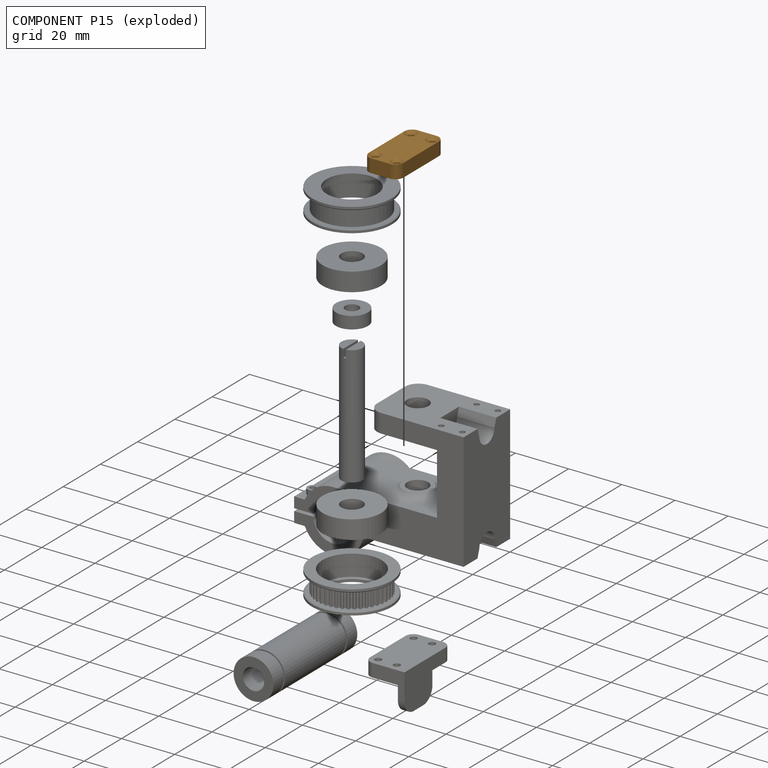
[diagram: component P15 — exploded]
COMPONENT P15 — geometry summary (no construction recipe available for this part):
  bounding box: 25.0 x 13.0 x 5.0 mm
  B-rep topology: 1 solid, 18 faces, 88 edges
  volume: 1468 mm^3 (90% of its bounding box)
  symmetry: 2-fold rotationally symmetric about the z axis; mirror-symmetric across its x mid-plane, y mid-plane
Held by: FASTENED mate "Fastened 4" to P10; FASTENED mate "Fastened 4" to P10.
